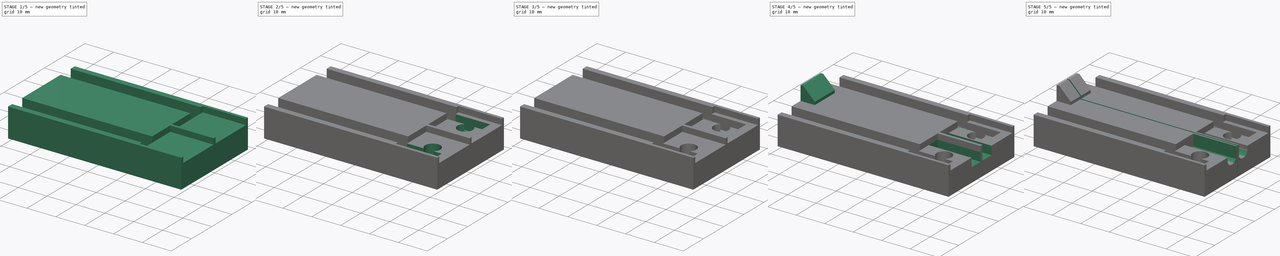
[diagram: build sequence overview — one tinted view per stage of 5, left to right]
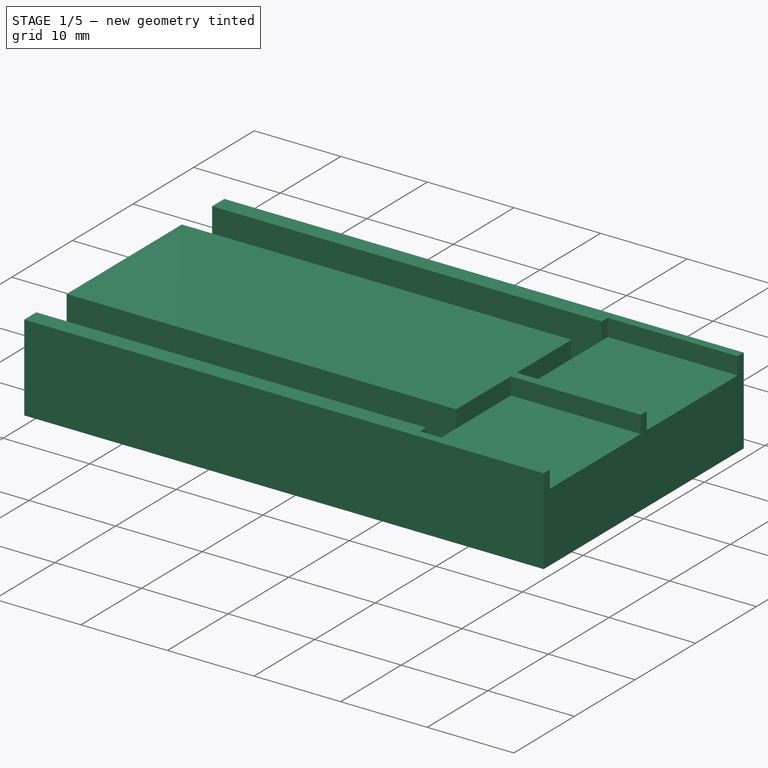
[diagram: stage 1 of 5 — iso view after this stage's code; geometry added in this stage tinted green]
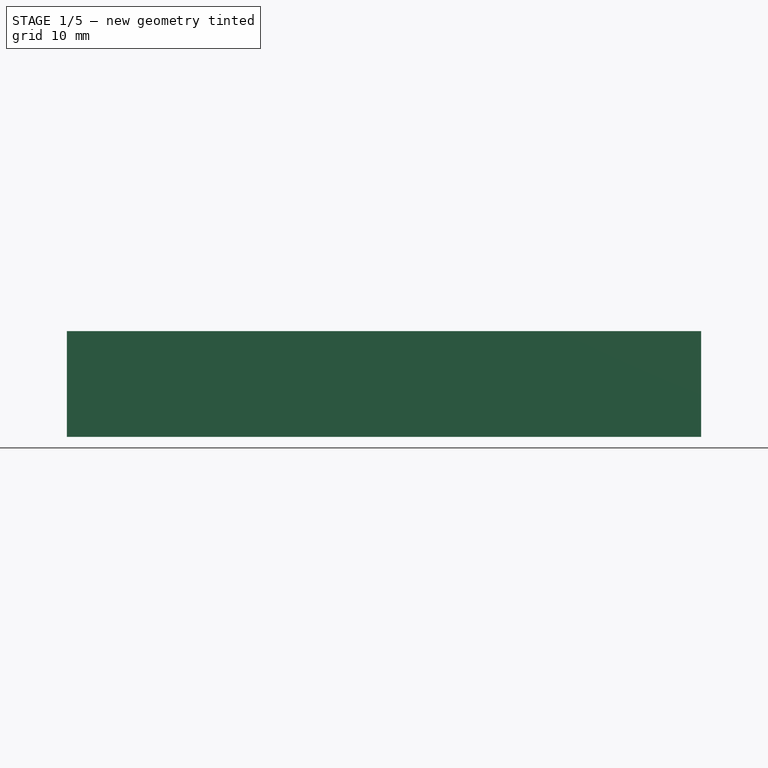
[diagram: stage 1 of 5 — front view after this stage's code; geometry added in this stage tinted green]
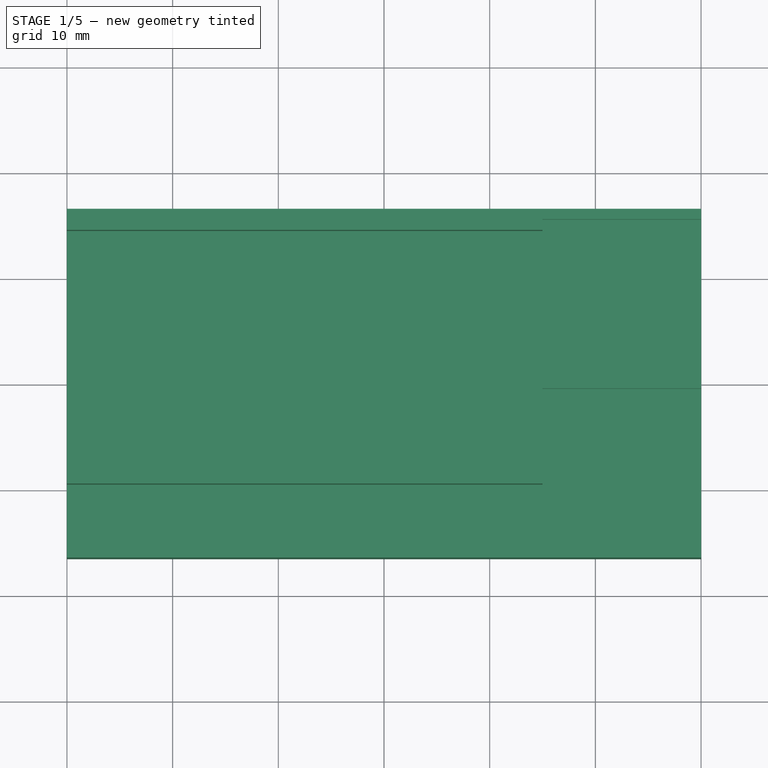
[diagram: stage 1 of 5 — top view after this stage's code; geometry added in this stage tinted green]
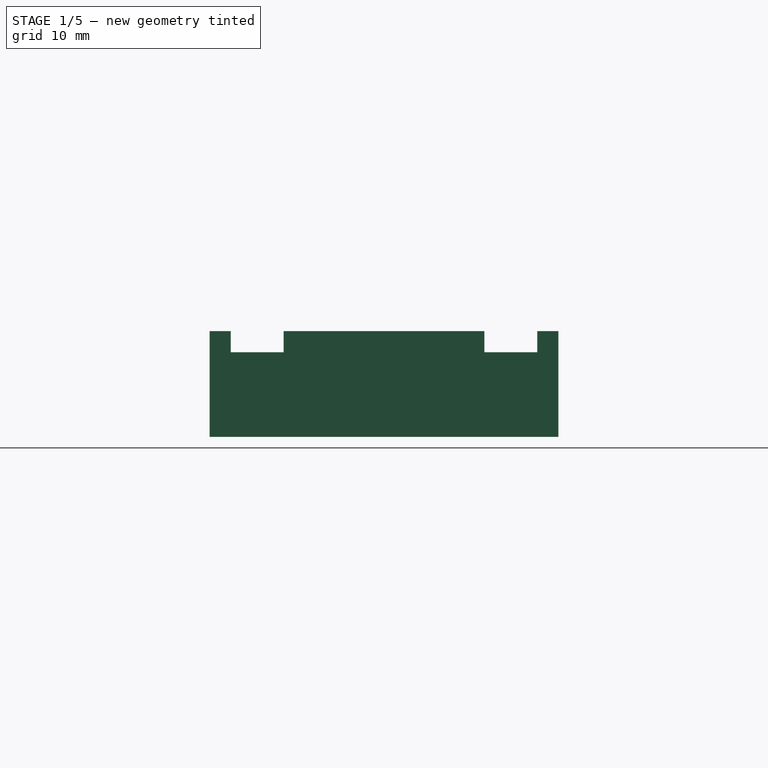
[diagram: stage 1 of 5 — right view after this stage's code; geometry added in this stage tinted green]
FCSTD DOCUMENT  (FreeCAD 0.20R29603 (Git))
Label: base
License: All rights reserved
LicenseURL: http://en.wikipedia.org/wiki/All_rights_reserved
objects: Sketcher::SketchObject×10, PartDesign::Pocket×7, PartDesign::Fillet×5, PartDesign::Pad×3, PartDesign::Chamfer×1, PartDesign::Body×1
note: 43 computed .brp shape members not serialized (recipe doc carries the construction recipe); baked Part::Feature solids carry a one-line shape summary decoded from their .brp

FEATURE [Sketcher::SketchObject] Sketch
  FullyConstrained = true
  MapMode = 5
  Support = -> [XY_Plane]
  sketch-geometry (4):
    g0: LineSegment StartX=-30 StartY=16.5 StartZ=0 EndX=30 EndY=16.5 EndZ=0
    g1: LineSegment StartX=30 StartY=16.5 StartZ=0 EndX=30 EndY=-16.5 EndZ=0
    g2: LineSegment StartX=30 StartY=-16.5 StartZ=0 EndX=-30 EndY=-16.5 EndZ=0
    g3: LineSegment StartX=-30 StartY=-16.5 StartZ=0 EndX=-30 EndY=16.5 EndZ=0
  constraints (11):
    c: Coincident(g0,g1)
    c: Coincident(g1,g2)
    c: Coincident(g2,g3)
    c: Coincident(g3,g0)
    c: Horizontal(g0)
    c: Horizontal(g2)
    c: Vertical(g1)
    c: Vertical(g3)
    c: Symmetric(g0,g1,g-1)
    c: DistanceY(g3,g3) = 33
    c: DistanceX(g0,g0) = 60
FEATURE [PartDesign::Pad] Pad
  Direction = (0,0,1)
  Length = 10
  Length2 = 10
  Profile = -> Sketch
  ReferenceAxis = -> Sketch [N_Axis]
  Type = 0
FEATURE [Sketcher::SketchObject] Sketch001
  ExternalGeometry = -> [Pad]
  FullyConstrained = true
  MapMode = 5
  Placement = pos=(0,0,10) rot=(0,0,1;0rad)
  Support = -> [Pad]
  sketch-geometry (8):
    g0: LineSegment StartX=15 StartY=15.5 StartZ=0 EndX=30 EndY=15.5 EndZ=0
    g1: LineSegment StartX=30 StartY=15.5 StartZ=0 EndX=30 EndY=0.5 EndZ=0
    g2: LineSegment StartX=30 StartY=0.5 StartZ=0 EndX=15 EndY=0.5 EndZ=0
    g3: LineSegment StartX=15 StartY=0.5 StartZ=0 EndX=15 EndY=15.5 EndZ=0
    g4: LineSegment StartX=15 StartY=-0.5 StartZ=0 EndX=30 EndY=-0.5 EndZ=0
    g5: LineSegment StartX=30 StartY=-0.5 StartZ=0 EndX=30 EndY=-15.5 EndZ=0
    g6: LineSegment StartX=30 StartY=-15.5 StartZ=0 EndX=15 EndY=-15.5 EndZ=0
    g7: LineSegment StartX=15 StartY=-15.5 StartZ=0 EndX=15 EndY=-0.5 EndZ=0
  constraints (24):
    c: Coincident(g0,g1)
    c: Coincident(g1,g2)
    c: Coincident(g2,g3)
    c: Coincident(g3,g0)
    c: Horizontal(g0)
    c: Horizontal(g2)
    c: Vertical(g1)
    c: Vertical(g3)
    c: Coincident(g4,g5)
    c: Coincident(g5,g6)
    c: Coincident(g6,g7)
    c: Coincident(g7,g4)
    c: Horizontal(g4)
    c: Horizontal(g6)
    c: Vertical(g5)
    c: Vertical(g7)
    c: Equal(g0,g3)
    c: Equal(g0,g4)
    c: Equal(g0,g7)
    c: DistanceX(g6,g6) = 15
    c: Distance(g0,g-3) = 1
    c: Distance(g5,g-5) = 1
    c: PointOnObject(g0,g-4)
    c: PointOnObject(g5,g-4)
FEATURE [PartDesign::Pocket] Pocket
  BaseFeature = -> Pad
  Direction = (0,0,-1)
  Length = 2
  Length2 = 5
  Profile = -> Sketch001
  ReferenceAxis = -> Sketch001 [N_Axis]
  Type = 0
FEATURE [Sketcher::SketchObject] Sketch002
  ExternalGeometry = -> [Pocket]
  FullyConstrained = true
  MapMode = 5
  Placement = pos=(0,0,10) rot=(0,0,1;0rad)
  Support = -> [Pocket]
  sketch-geometry (8):
    g0: LineSegment StartX=-30 StartY=14.5 StartZ=0 EndX=15 EndY=14.5 EndZ=0
    g1: LineSegment StartX=15 StartY=14.5 StartZ=0 EndX=15 EndY=9.5 EndZ=0
    g2: LineSegment StartX=15 StartY=9.5 StartZ=0 EndX=-30 EndY=9.5 EndZ=0
    g3: LineSegment StartX=-30 StartY=9.5 StartZ=0 EndX=-30 EndY=14.5 EndZ=0
    g4: LineSegment StartX=-30 StartY=-9.5 StartZ=0 EndX=15 EndY=-9.5 EndZ=0
    g5: LineSegment StartX=15 StartY=-9.5 StartZ=0 EndX=15 EndY=-14.5 EndZ=0
    g6: LineSegment StartX=15 StartY=-14.5 StartZ=0 EndX=-30 EndY=-14.5 EndZ=0
    g7: LineSegment StartX=-30 StartY=-14.5 StartZ=0 EndX=-30 EndY=-9.5 EndZ=0
  constraints (24):
    c: Coincident(g0,g1)
    c: Coincident(g1,g2)
    c: Coincident(g2,g3)
    c: Coincident(g3,g0)
    c: Horizontal(g0)
    c: Horizontal(g2)
    c: Vertical(g1)
    c: Vertical(g3)
    c: Coincident(g4,g5)
    c: Coincident(g5,g6)
    c: Coincident(g6,g7)
    c: Coincident(g7,g4)
    c: Horizontal(g4)
    c: Horizontal(g6)
    c: Vertical(g5)
    c: Vertical(g7)
    c: Equal(g0,g4)
    c: Equal(g3,g7)
    c: DistanceX(g0,g0) = 45
    c: Distance(g0,g-3) = 2
    c: Distance(g6,g-5) = 2
    c: PointOnObject(g2,g-4)
    c: PointOnObject(g4,g-4)
    c: DistanceY(g1,g1) = 5
FEATURE [PartDesign::Pocket] Pocket001
  BaseFeature = -> Pocket
  Direction = (0,0,-1)
  Length = 6.5
  Length2 = 5
  Profile = -> Sketch002
  ReferenceAxis = -> Sketch002 [N_Axis]
  Type = 0
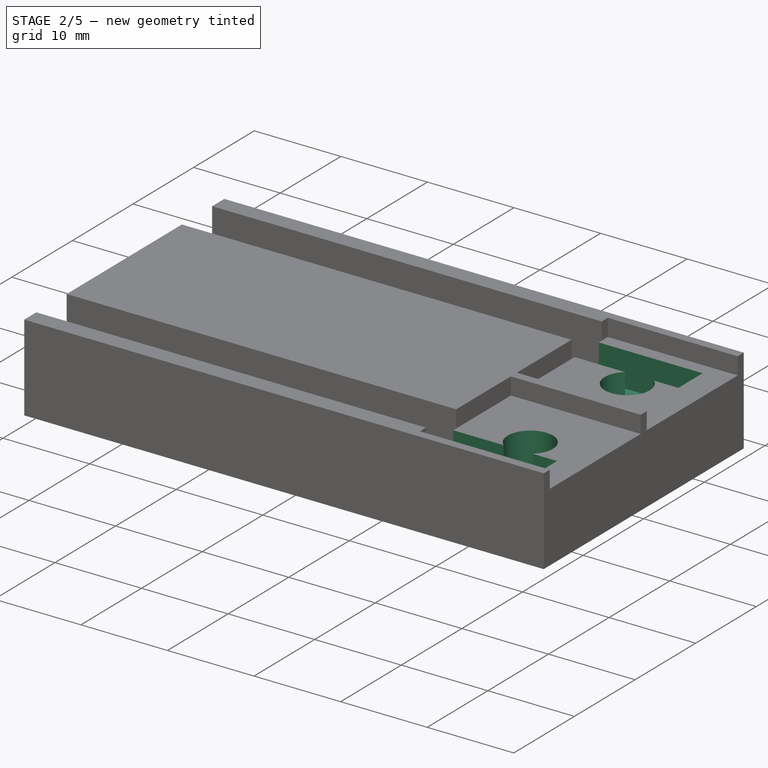
[diagram: stage 2 of 5 — iso view after this stage's code; geometry added in this stage tinted green]
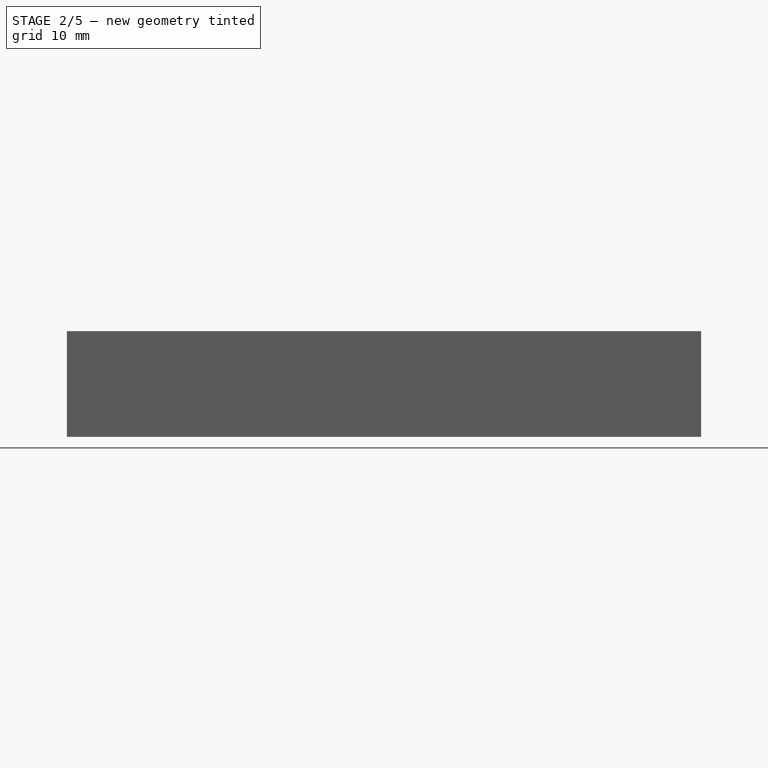
[diagram: stage 2 of 5 — front view after this stage's code; geometry added in this stage tinted green]
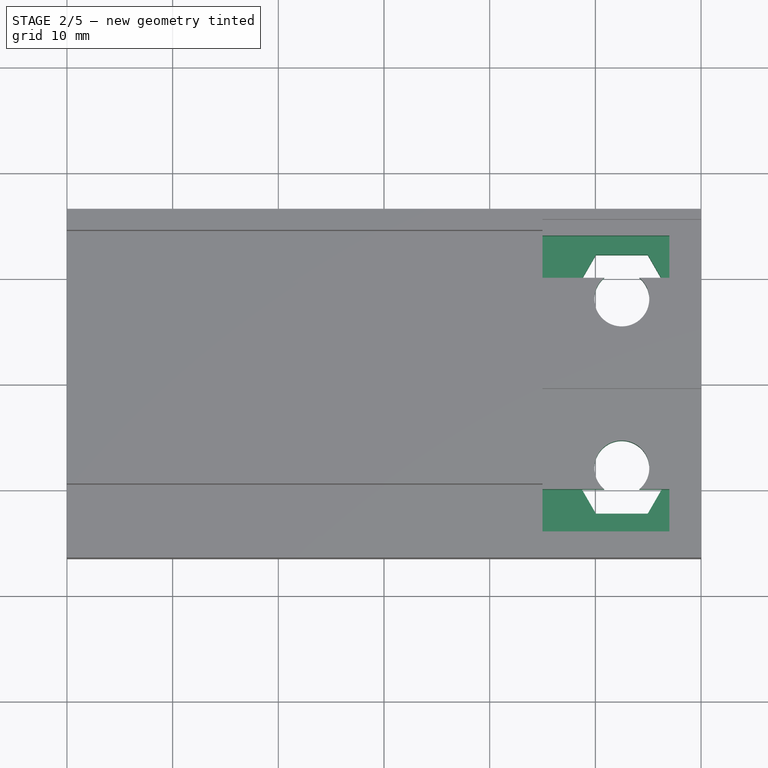
[diagram: stage 2 of 5 — top view after this stage's code; geometry added in this stage tinted green]
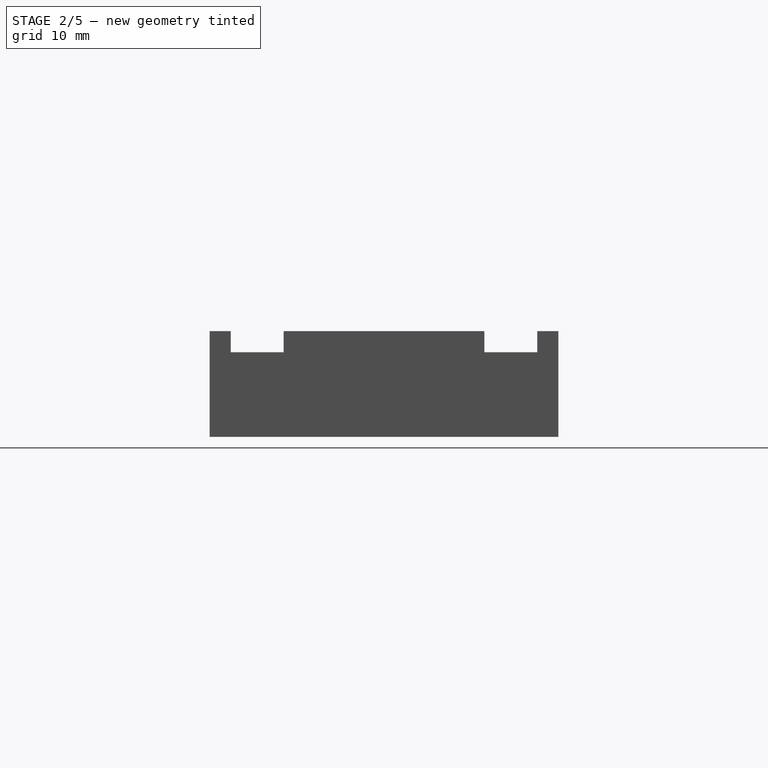
[diagram: stage 2 of 5 — right view after this stage's code; geometry added in this stage tinted green]
FEATURE [Sketcher::SketchObject] Sketch003
  ExternalGeometry = -> [Pocket001]
  FullyConstrained = true
  MapMode = 5
  Placement = pos=(0,0,8) rot=(0,0,1;0rad)
  Support = -> [Pocket001]
  sketch-geometry (2):
    g0: Circle CenterX=22.5 CenterY=8 CenterZ=0 NormalX=0 NormalY=0 NormalZ=1 AngleXU=0 Radius=2.6
    g1: Circle CenterX=22.5 CenterY=-8 CenterZ=0 NormalX=0 NormalY=0 NormalZ=1 AngleXU=0 Radius=2.6
  constraints (6):
    c: Equal(g0,g1)
    c: Radius(g0) = 2.6
    c: Distance(g0,g1) = 16
    c: Distance(g0,g-1) = 8
    c: Distance(g0,g-3) = 7.5
    c: Distance(g1,g-4) = 7.5
FEATURE [PartDesign::Pocket] Pocket002
  BaseFeature = -> Pocket001
  Direction = (0,0,-1)
  Length = 5
  Length2 = 5
  Profile = -> Sketch003
  ReferenceAxis = -> Sketch003 [N_Axis]
  Type = 1
FEATURE [Sketcher::SketchObject] Sketch004
  ExternalGeometry = -> [Pocket002]
  FullyConstrained = true
  MapMode = 5
  Placement = pos=(0,0,0) rot=(1,0,0;3.14159rad)
  Support = -> [Pocket002]
  sketch-geometry (14):
    g0: LineSegment StartX=24.9537 StartY=12.25 StartZ=0 EndX=20.0463 EndY=12.25 EndZ=0
    g1: LineSegment StartX=20.0463 StartY=12.25 StartZ=0 EndX=17.5925 EndY=8 EndZ=0
    g2: LineSegment StartX=17.5925 StartY=8 StartZ=0 EndX=20.0463 EndY=3.75 EndZ=0
    g3: LineSegment StartX=20.0463 StartY=3.75 StartZ=0 EndX=24.9537 EndY=3.75 EndZ=0
    g4: LineSegment StartX=24.9537 StartY=3.75 StartZ=0 EndX=27.4075 EndY=8 EndZ=0
    g5: LineSegment StartX=27.4075 StartY=8 StartZ=0 EndX=24.9537 EndY=12.25 EndZ=0
    g6: Circle CenterX=22.5 CenterY=8 CenterZ=0 NormalX=0 NormalY=0 NormalZ=1 AngleXU=0 Radius=4.90748
    g7: LineSegment StartX=24.9537 StartY=-3.75 StartZ=0 EndX=20.0463 EndY=-3.75 EndZ=0
    g8: LineSegment StartX=20.0463 StartY=-3.75 StartZ=0 EndX=17.5925 EndY=-8 EndZ=0
    g9: LineSegment StartX=17.5925 StartY=-8 StartZ=0 EndX=20.0463 EndY=-12.25 EndZ=0
    g10: LineSegment StartX=20.0463 StartY=-12.25 StartZ=0 EndX=24.9537 EndY=-12.25 EndZ=0
    g11: LineSegment StartX=24.9537 StartY=-12.25 StartZ=0 EndX=27.4075 EndY=-8 EndZ=0
    g12: LineSegment StartX=27.4075 StartY=-8 StartZ=0 EndX=24.9537 EndY=-3.75 EndZ=0
    g13: Circle CenterX=22.5 CenterY=-8 CenterZ=0 NormalX=0 NormalY=0 NormalZ=1 AngleXU=0 Radius=4.90748
  constraints (32):
    c: Coincident(g0,g1)
    c: Coincident(g1,g2)
    c: Coincident(g2,g3)
    c: Coincident(g3,g4)
    c: Coincident(g4,g5)
    c: Coincident(g5,g0)
    c: Equal(g0, g1-g5) x5
    c: PointOnObject(g0,g6)
    c: PointOnObject(g1,g6)
    c: PointOnObject(g2,g6)
    c: PointOnObject(g3,g6)
    c: PointOnObject(g4,g6)
    c: PointOnObject(g5,g6)
    c: Coincident(g7,g8)
    c: Coincident(g8,g9)
    c: Coincident(g9,g10)
    c: Coincident(g10,g11)
    c: Coincident(g11,g12)
    c: Coincident(g12,g7)
    c: Equal(g7, g8-g12) x5
    c: PointOnObject(g7,g13)
    c: PointOnObject(g8,g13)
    c: PointOnObject(g9,g13)
    c: PointOnObject(g10,g13)
    c: PointOnObject(g11,g13)
    c: PointOnObject(g12,g13)
    c: Horizontal(g0)
    c: Horizontal(g7)
    c: Equal(g6,g13)
    c: Coincident(g6,g-3)
    c: Coincident(g13,g-4)
    c: Distance(g1,g0) = 8.5
FEATURE [PartDesign::Pocket] Pocket003
  BaseFeature = -> Pocket002
  Direction = (0,0,1)
  Length = 4
  Length2 = 5
  Profile = -> Sketch004
  ReferenceAxis = -> Sketch004 [N_Axis]
  Type = 0
FEATURE [Sketcher::SketchObject] Sketch005
  ExternalGeometry = -> [Pocket003]
  FullyConstrained = true
  MapMode = 5
  Placement = pos=(0,0,8) rot=(0,0,1;0rad)
  Support = -> [Pocket003]
  sketch-geometry (8):
    g0: LineSegment StartX=15 StartY=14 StartZ=0 EndX=27 EndY=14 EndZ=0
    g1: LineSegment StartX=27 StartY=14 StartZ=0 EndX=27 EndY=10 EndZ=0
    g2: LineSegment StartX=27 StartY=10 StartZ=0 EndX=15 EndY=10 EndZ=0
    g3: LineSegment StartX=15 StartY=10 StartZ=0 EndX=15 EndY=14 EndZ=0
    g4: LineSegment StartX=15 StartY=-10 StartZ=0 EndX=27 EndY=-10 EndZ=0
    g5: LineSegment StartX=27 StartY=-10 StartZ=0 EndX=27 EndY=-14 EndZ=0
    g6: LineSegment StartX=27 StartY=-14 StartZ=0 EndX=15 EndY=-14 EndZ=0
    g7: LineSegment StartX=15 StartY=-14 StartZ=0 EndX=15 EndY=-10 EndZ=0
  constraints (24):
    c: Coincident(g0,g1)
    c: Coincident(g1,g2)
    c: Coincident(g2,g3)
    c: Coincident(g3,g0)
    c: Horizontal(g0)
    c: Horizontal(g2)
    c: Vertical(g1)
    c: Vertical(g3)
    c: Coincident(g4,g5)
    c: Coincident(g5,g6)
    c: Coincident(g6,g7)
    c: Coincident(g7,g4)
    c: Horizontal(g4)
    c: Horizontal(g6)
    c: Vertical(g5)
    c: Vertical(g7)
    c: Equal(g0,g4)
    c: Equal(g1,g5)
    c: DistanceY(g1,g1) = 4
    c: DistanceX(g0,g0) = 12
    c: Distance(g0,g-5) = 0.5
    c: Distance(g6,g-6) = 0.5
    c: PointOnObject(g2,g-3)
    c: PointOnObject(g4,g-4)
FEATURE [PartDesign::Pocket] Pocket004
  BaseFeature = -> Pocket003
  Direction = (0,0,-1)
  Length = 4
  Length2 = 5
  Profile = -> Sketch005
  ReferenceAxis = -> Sketch005 [N_Axis]
  Type = 0
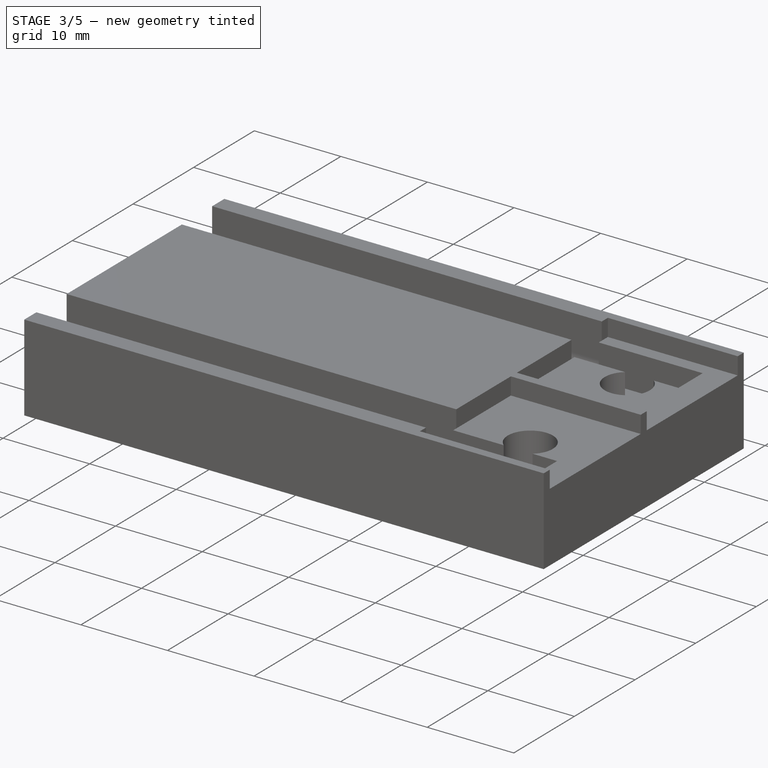
[diagram: stage 3 of 5 — iso view after this stage's code; geometry added in this stage tinted green]
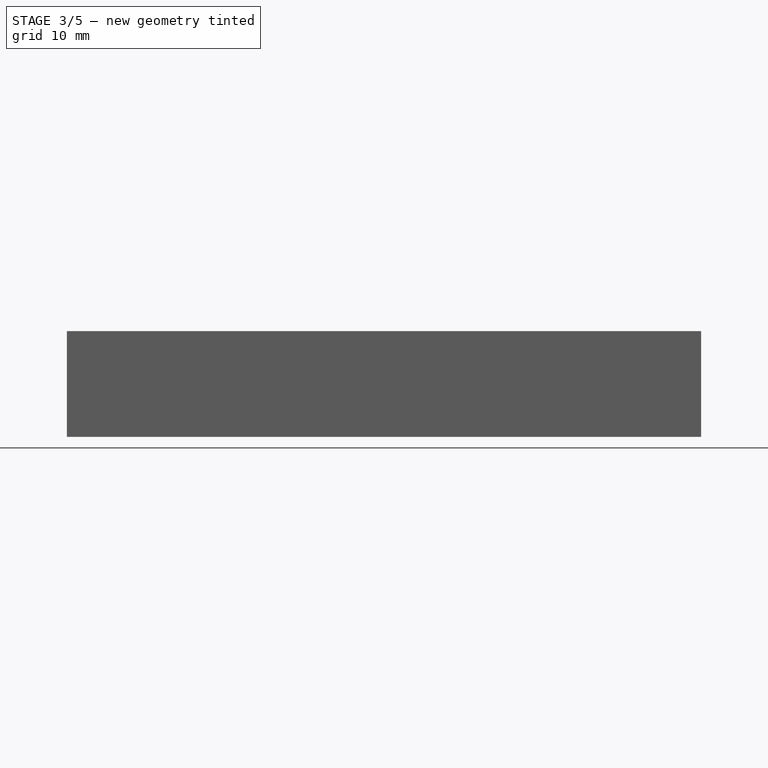
[diagram: stage 3 of 5 — front view after this stage's code; geometry added in this stage tinted green]
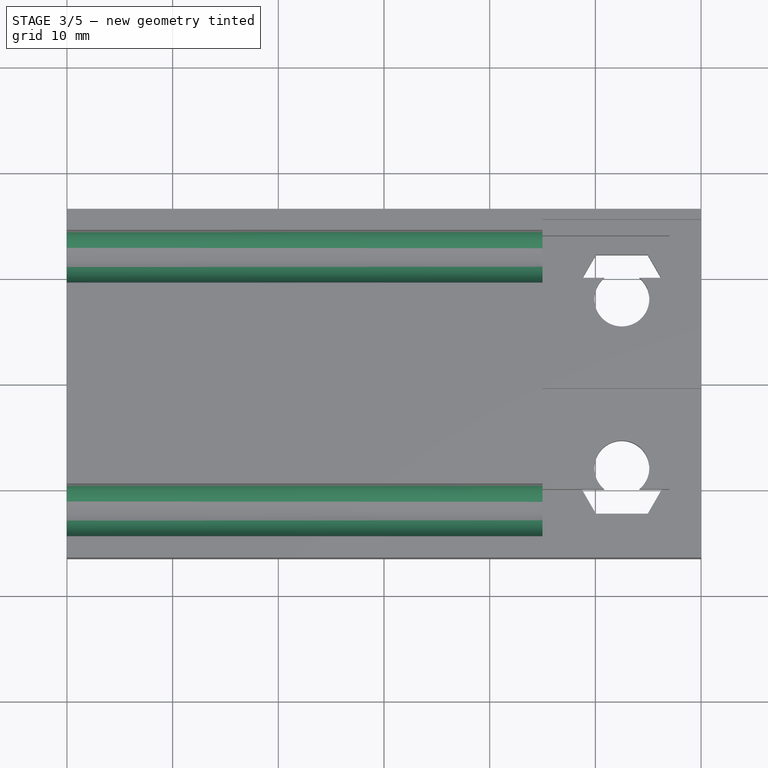
[diagram: stage 3 of 5 — top view after this stage's code; geometry added in this stage tinted green]
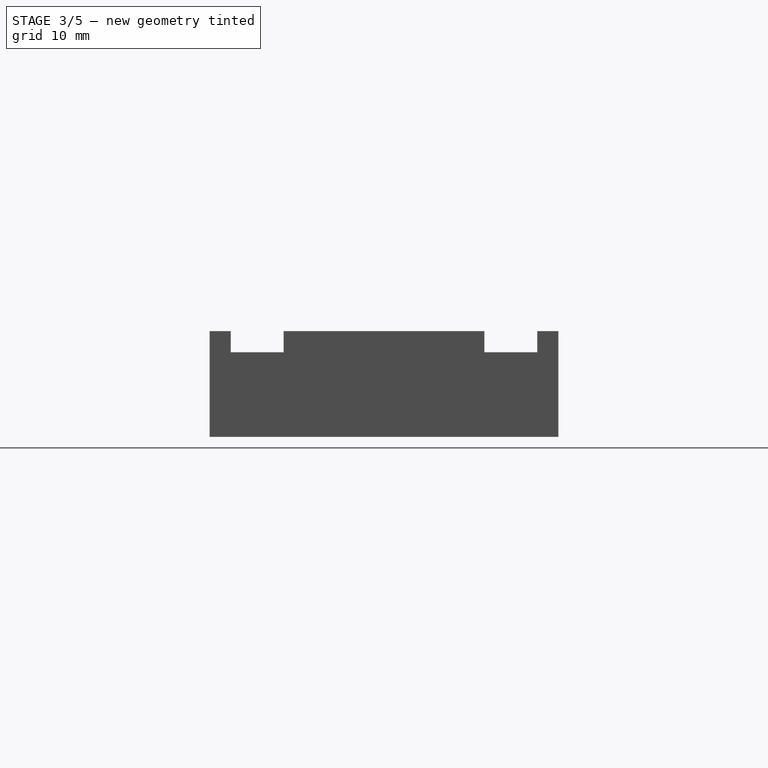
[diagram: stage 3 of 5 — right view after this stage's code; geometry added in this stage tinted green]
FEATURE [PartDesign::Fillet] Fillet
  Base = -> Pocket004 [Edge45]
  BaseFeature = -> Pocket004
  Radius = 2.4
  SupportTransform = false
  UseAllEdges = false
FEATURE [PartDesign::Fillet] Fillet001
  Base = -> Fillet [Edge55]
  BaseFeature = -> Fillet
  Radius = 2.4
  SupportTransform = false
  UseAllEdges = false
FEATURE [PartDesign::Fillet] Fillet002
  Base = -> Fillet001 [Edge42]
  BaseFeature = -> Fillet001
  Radius = 2.4
  SupportTransform = false
  UseAllEdges = false
FEATURE [PartDesign::Fillet] Fillet003
  Base = -> Fillet002 [Edge47]
  BaseFeature = -> Fillet002
  Radius = 2.4
  SupportTransform = false
  UseAllEdges = false
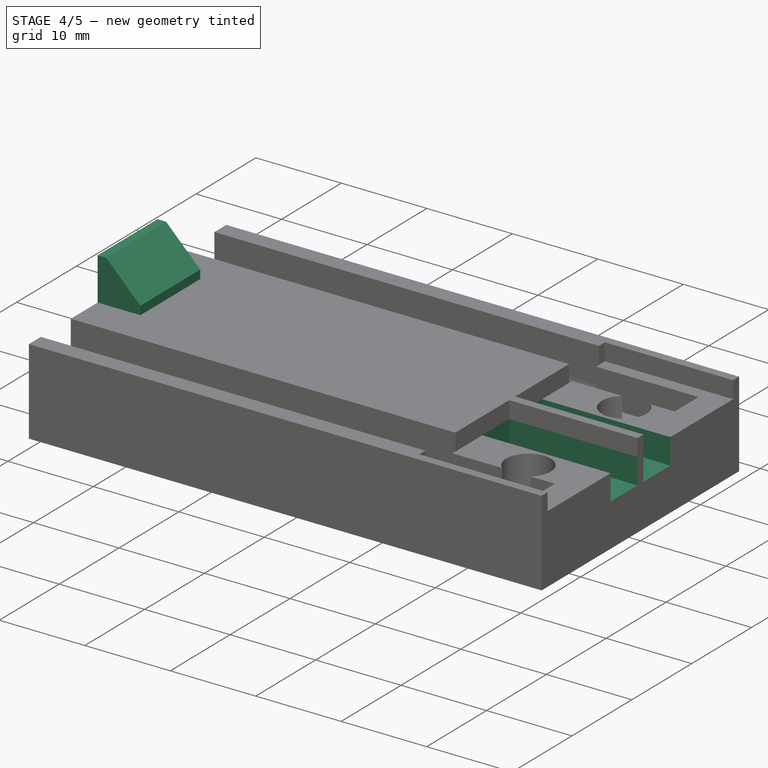
[diagram: stage 4 of 5 — iso view after this stage's code; geometry added in this stage tinted green]
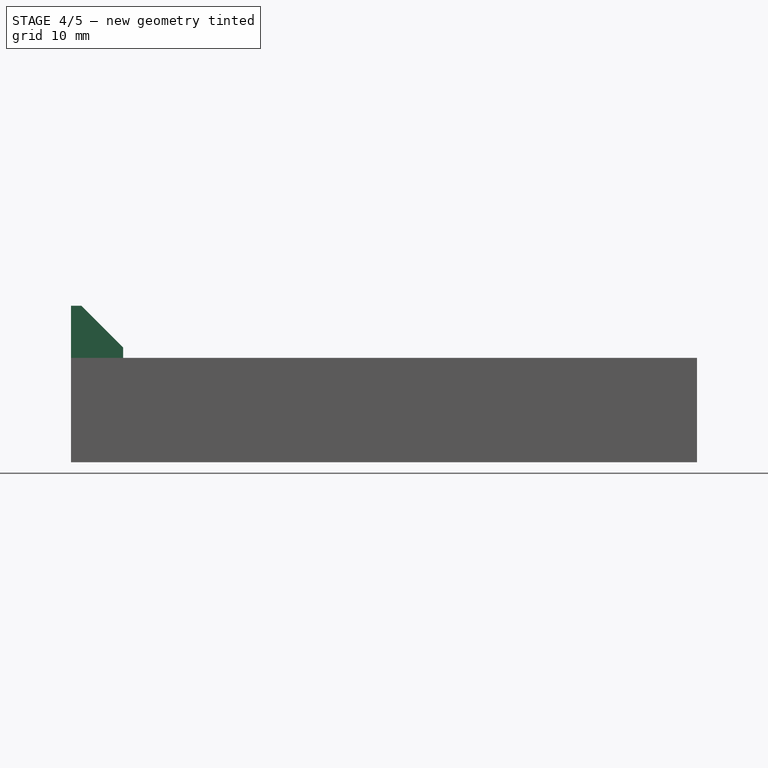
[diagram: stage 4 of 5 — front view after this stage's code; geometry added in this stage tinted green]
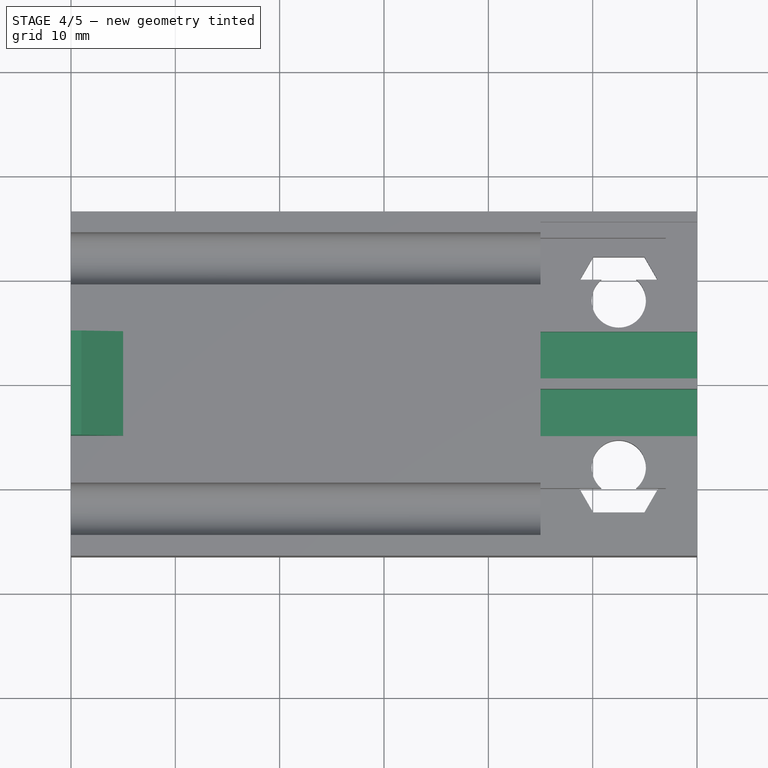
[diagram: stage 4 of 5 — top view after this stage's code; geometry added in this stage tinted green]
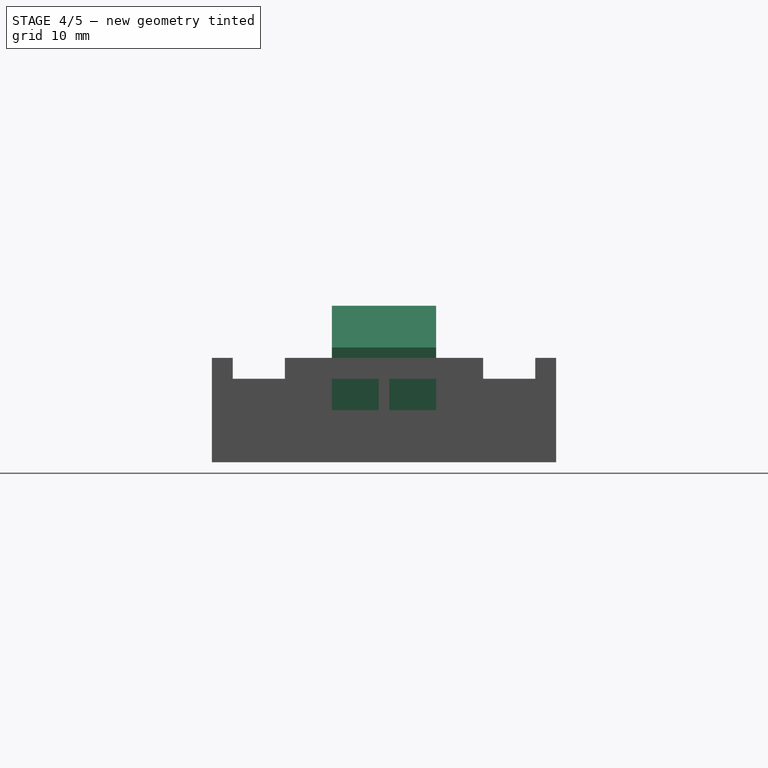
[diagram: stage 4 of 5 — right view after this stage's code; geometry added in this stage tinted green]
FEATURE [Sketcher::SketchObject] Sketch008
  FullyConstrained = false
  MapMode = 5
  Placement = pos=(0,0,8) rot=(0,0,1;0rad)
  sketch-geometry (8):
    g0: LineSegment StartX=15 StartY=5 StartZ=0 EndX=30 EndY=5 EndZ=0
    g1: LineSegment StartX=30 StartY=5 StartZ=0 EndX=30 EndY=0.5 EndZ=0
    g2: LineSegment StartX=30 StartY=0.5 StartZ=0 EndX=15 EndY=0.5 EndZ=0
    g3: LineSegment StartX=15 StartY=0.5 StartZ=0 EndX=15 EndY=5 EndZ=0
    g4: LineSegment StartX=15 StartY=-0.5 StartZ=0 EndX=30 EndY=-0.5 EndZ=0
    g5: LineSegment StartX=30 StartY=-0.5 StartZ=0 EndX=30 EndY=-5 EndZ=0
    g6: LineSegment StartX=30 StartY=-5 StartZ=0 EndX=15 EndY=-5 EndZ=0
    g7: LineSegment StartX=15 StartY=-5 StartZ=0 EndX=15 EndY=-0.5 EndZ=0
  constraints (19):
    c: Coincident(g0,g1)
    c: Coincident(g1,g2)
    c: Coincident(g2,g3)
    c: Coincident(g3,g0)
    c: Horizontal(g0)
    c: Horizontal(g2)
    c: Vertical(g1)
    c: Vertical(g3)
    c: Coincident(g4,g5)
    c: Coincident(g5,g6)
    c: Coincident(g6,g7)
    c: Coincident(g7,g4)
    c: Horizontal(g4)
    c: Horizontal(g6)
    c: Vertical(g5)
    c: Vertical(g7)
    c: Equal(g0,g4)
    c: Equal(g1,g5)
    c: DistanceY(g1,g1) = 4.5
FEATURE [PartDesign::Pocket] Pocket007
  BaseFeature = -> Fillet003
  Direction = (0,0,-1)
  Length = 3
  Length2 = 5
  Profile = -> Sketch008
  ReferenceAxis = -> Sketch008 [N_Axis]
  Type = 0
FEATURE [Sketcher::SketchObject] Sketch009
  ExternalGeometry = -> [Pocket007]
  FullyConstrained = true
  MapMode = 5
  Placement = pos=(0,0,10) rot=(0,0,1;0rad)
  Support = -> [Pocket007]
  sketch-geometry (4):
    g0: LineSegment StartX=-30 StartY=5 StartZ=0 EndX=-25 EndY=5 EndZ=0
    g1: LineSegment StartX=-25 StartY=5 StartZ=0 EndX=-25 EndY=-5 EndZ=0
    g2: LineSegment StartX=-25 StartY=-5 StartZ=0 EndX=-30 EndY=-5 EndZ=0
    g3: LineSegment StartX=-30 StartY=-5 StartZ=0 EndX=-30 EndY=5 EndZ=0
  constraints (12):
    c: Coincident(g0,g1)
    c: Coincident(g1,g2)
    c: Coincident(g2,g3)
    c: Coincident(g3,g0)
    c: Horizontal(g0)
    c: Horizontal(g2)
    c: Vertical(g1)
    c: Vertical(g3)
    c: PointOnObject(g0,g-3)
    c: DistanceX(g0,g0) = 5
    c: DistanceY(g1,g1) = 10
    c: Distance(g0,g-1) = 5
FEATURE [PartDesign::Pad] Pad001
  BaseFeature = -> Pocket007
  Direction = (0,0,1)
  Length = 5
  Length2 = 10
  Profile = -> Sketch009
  ReferenceAxis = -> Sketch009 [N_Axis]
  Type = 0
FEATURE [PartDesign::Chamfer] Chamfer
  Angle = 45
  Base = -> Pad001 [Edge123]
  BaseFeature = -> Pad001
  ChamferType = 0
  FlipDirection = false
  Size = 4
  Size2 = 1
  SupportTransform = false
  UseAllEdges = false
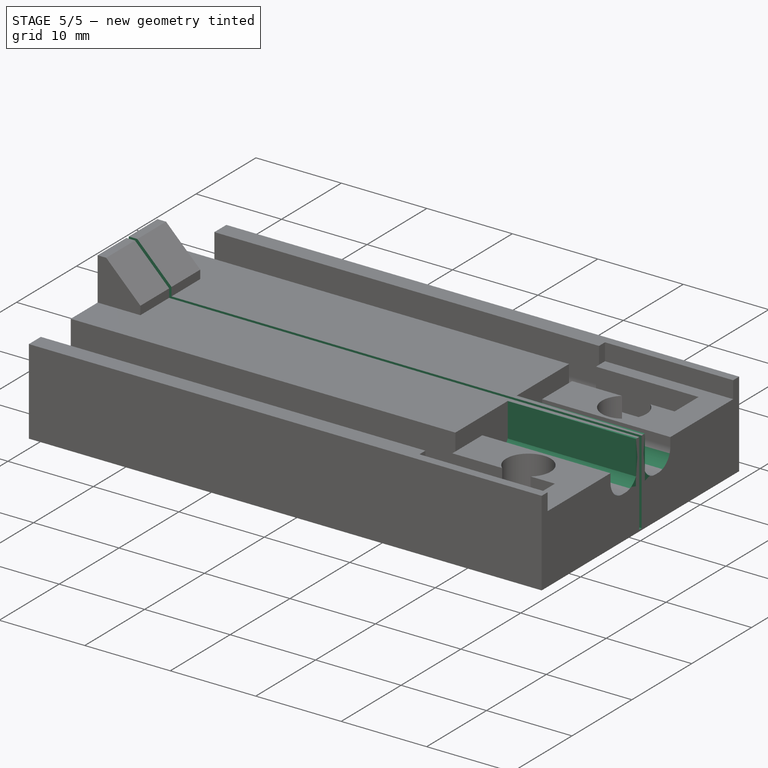
[diagram: stage 5 of 5 — iso view after this stage's code; geometry added in this stage tinted green]
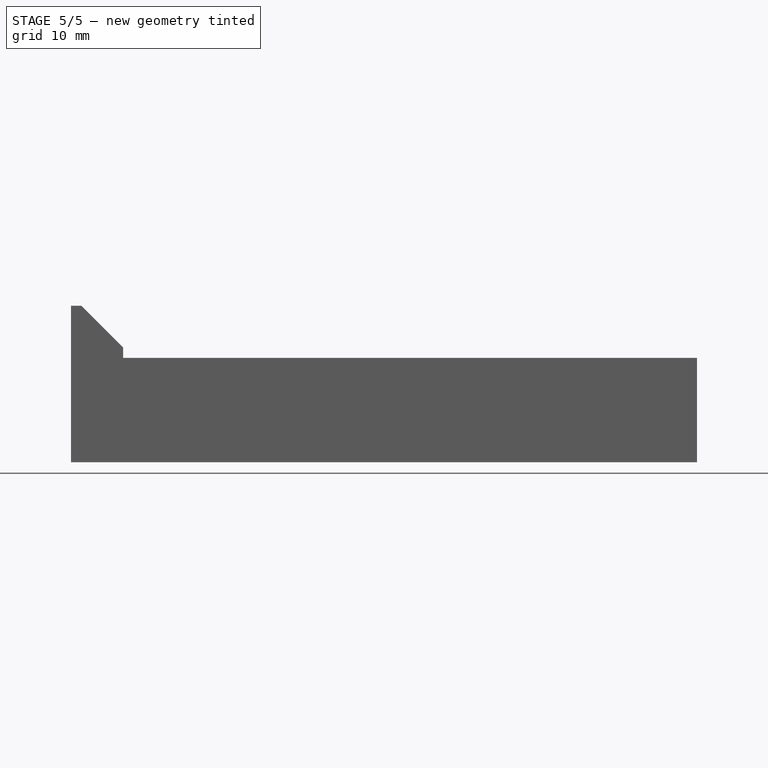
[diagram: stage 5 of 5 — front view after this stage's code; geometry added in this stage tinted green]
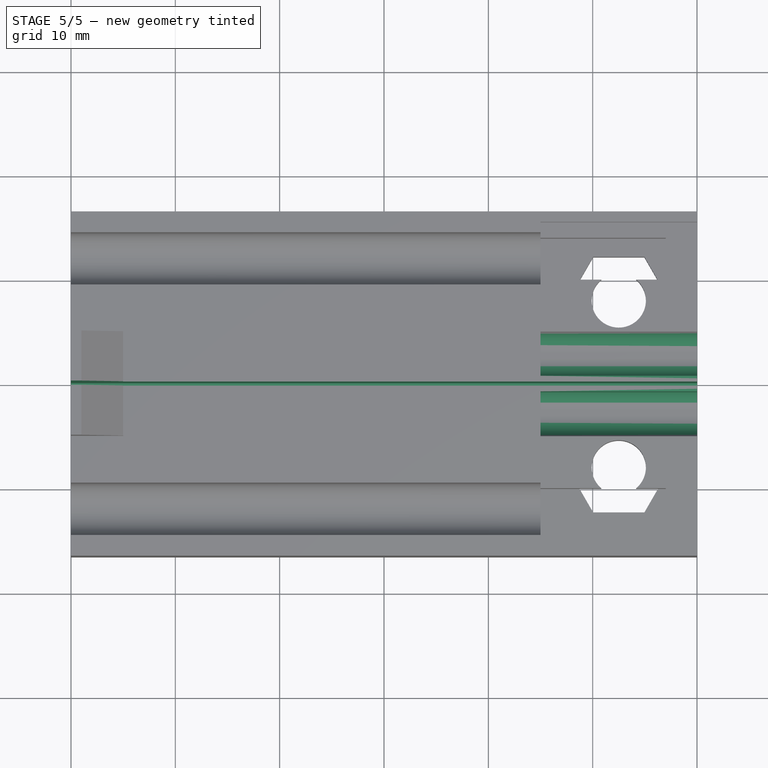
[diagram: stage 5 of 5 — top view after this stage's code; geometry added in this stage tinted green]
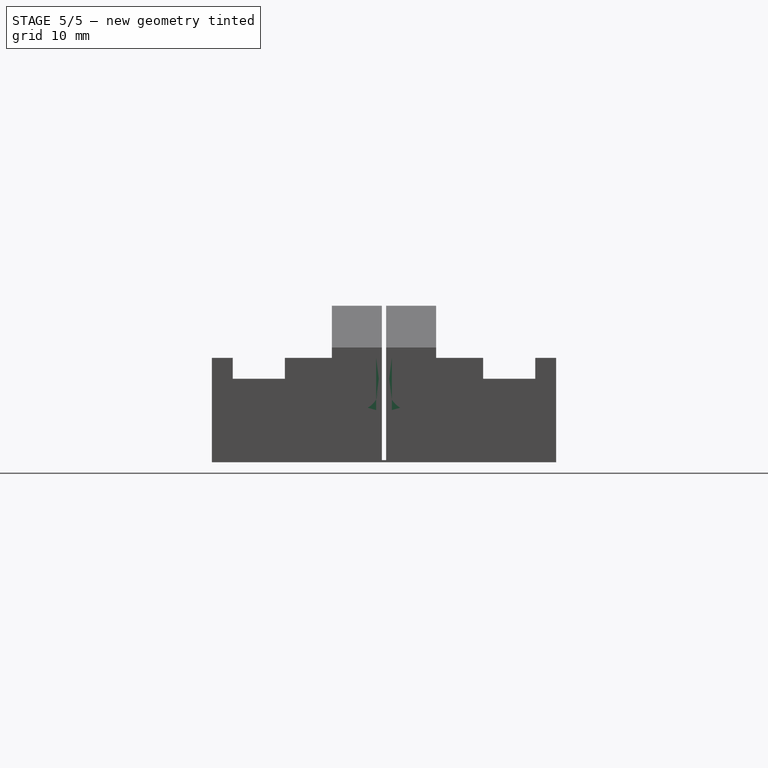
[diagram: stage 5 of 5 — right view after this stage's code; geometry added in this stage tinted green]
FEATURE [PartDesign::Fillet] Fillet004
  Base = -> Chamfer [Edge121,Edge118,Edge85,Edge117]
  BaseFeature = -> Chamfer
  Radius = 2
  SupportTransform = false
  UseAllEdges = false
FEATURE [Sketcher::SketchObject] Sketch010
  FullyConstrained = false
  MapMode = 5
  Placement = pos=(0,0,15) rot=(0,0,1;0rad)
  Support = -> [Fillet004]
  sketch-geometry (4):
    g0: LineSegment StartX=-33.2225 StartY=0.2 StartZ=0 EndX=32.8626 EndY=0.2 EndZ=0
    g1: LineSegment StartX=32.8626 StartY=0.2 StartZ=0 EndX=32.8626 EndY=-0.2 EndZ=0
    g2: LineSegment StartX=32.8626 StartY=-0.2 StartZ=0 EndX=-33.2225 EndY=-0.2 EndZ=0
    g3: LineSegment StartX=-33.2225 StartY=-0.2 StartZ=0 EndX=-33.2225 EndY=0.2 EndZ=0
  constraints (10):
    c: Coincident(g0,g1)
    c: Coincident(g1,g2)
    c: Coincident(g2,g3)
    c: Coincident(g3,g0)
    c: Horizontal(g0)
    c: Horizontal(g2)
    c: Vertical(g1)
    c: Vertical(g3)
    c: DistanceY(g3,g3) = 0.4
    c: Distance(g2,g-1) = 0.2
FEATURE [PartDesign::Pocket] Pocket008
  BaseFeature = -> Fillet004
  Direction = (0,0,-1)
  Length = 14.8
  Length2 = 5
  Profile = -> Sketch010
  ReferenceAxis = -> Sketch010 [N_Axis]
  Type = 0
FEATURE [Sketcher::SketchObject] Sketch011
  ExternalGeometry = -> [Pocket008]
  FullyConstrained = true
  MapMode = 5
  Placement = pos=(0,0,10) rot=(0,0,1;0rad)
  Support = -> [Pocket008]
  sketch-geometry (8):
    g0: LineSegment StartX=15 StartY=0.75 StartZ=0 EndX=30 EndY=0.75 EndZ=0
    g1: LineSegment StartX=30 StartY=0.75 StartZ=0 EndX=30 EndY=0.25 EndZ=0
    g2: LineSegment StartX=30 StartY=0.25 StartZ=0 EndX=15 EndY=0.25 EndZ=0
    g3: LineSegment StartX=15 StartY=0.25 StartZ=0 EndX=15 EndY=0.75 EndZ=0
    g4: LineSegment StartX=15 StartY=-0.25 StartZ=0 EndX=30 EndY=-0.25 EndZ=0
    g5: LineSegment StartX=30 StartY=-0.25 StartZ=0 EndX=30 EndY=-0.75 EndZ=0
    g6: LineSegment StartX=30 StartY=-0.75 StartZ=0 EndX=15 EndY=-0.75 EndZ=0
    g7: LineSegment StartX=15 StartY=-0.75 StartZ=0 EndX=15 EndY=-0.25 EndZ=0
  constraints (24):
    c: Coincident(g0,g1)
    c: Coincident(g1,g2)
    c: Coincident(g2,g3)
    c: Coincident(g3,g0)
    c: Horizontal(g0)
    c: Horizontal(g2)
    c: Vertical(g1)
    c: Vertical(g3)
    c: Coincident(g4,g5)
    c: Coincident(g5,g6)
    c: Coincident(g6,g7)
    c: Coincident(g7,g4)
    c: Horizontal(g4)
    c: Horizontal(g6)
    c: Vertical(g5)
    c: Vertical(g7)
    c: PointOnObject(g1,g-3)
    c: PointOnObject(g4,g-3)
    c: Equal(g0,g6)
    c: Equal(g3,g7)
    c: DistanceX(g0,g0) = 15
    c: DistanceY(g1,g1) = 0.5
    c: Distance(g1,g-1) = 0.25
    c: Distance(g4,g-1) = 0.25
FEATURE [PartDesign::Pad] Pad002
  BaseFeature = -> Pocket008
  Direction = (0,0,1)
  Length = 5
  Length2 = 10
  Profile = -> Sketch011
  ReferenceAxis = -> Sketch011 [N_Axis]
  Reversed = true
  Type = 0
FEATURE [PartDesign::Body] Body
  Group = -> [Sketch,Pad,Sketch001,Pocket,Sketch002,Pocket001,Sketch003,Pocket002,Sketch004,Pocket003,Sketch005,Pocket004,Fillet,Fillet001,Fillet002,Fillet003,Sketch008,Pocket007,Sketch009,Pad001,Chamfer,Fillet004,Sketch010,Pocket008,Sketch011,Pad002]
  Origin = -> Origin
  Tip = -> Pad002
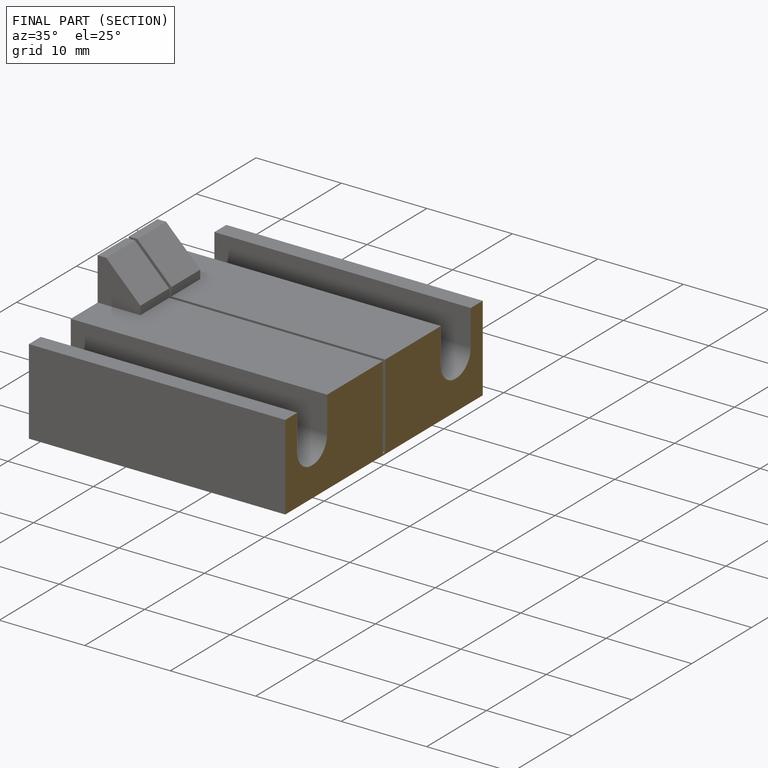
[diagram: finished part — half-section view (interior)]
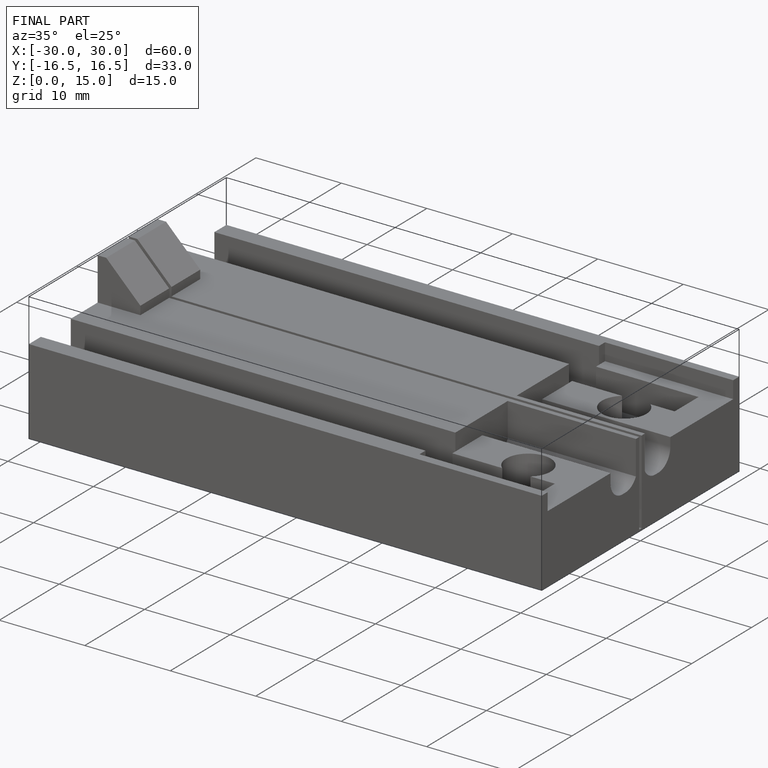
[diagram: finished part — iso view with bounding-box wireframe]
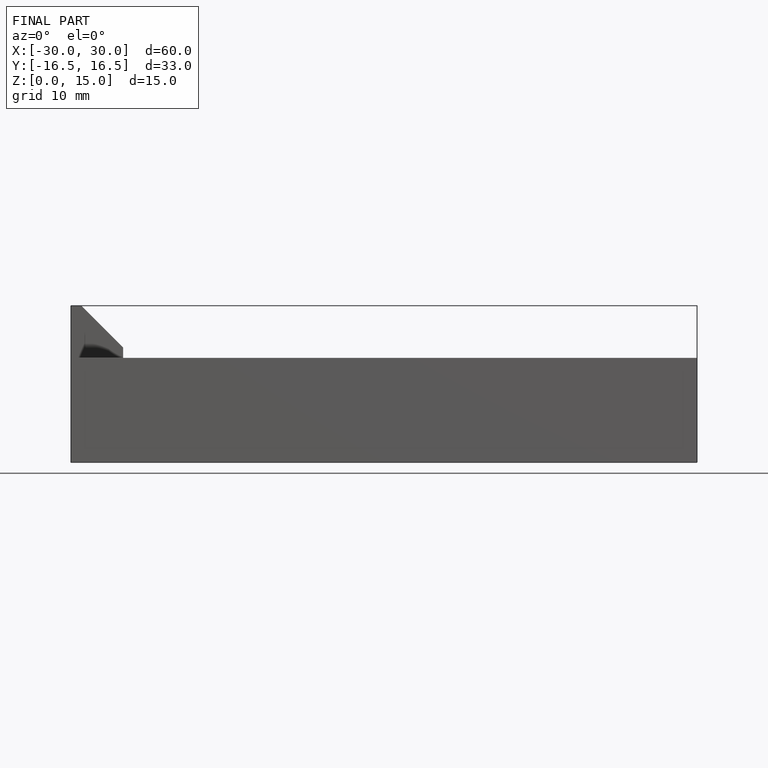
[diagram: finished part — front view with bounding-box wireframe]
